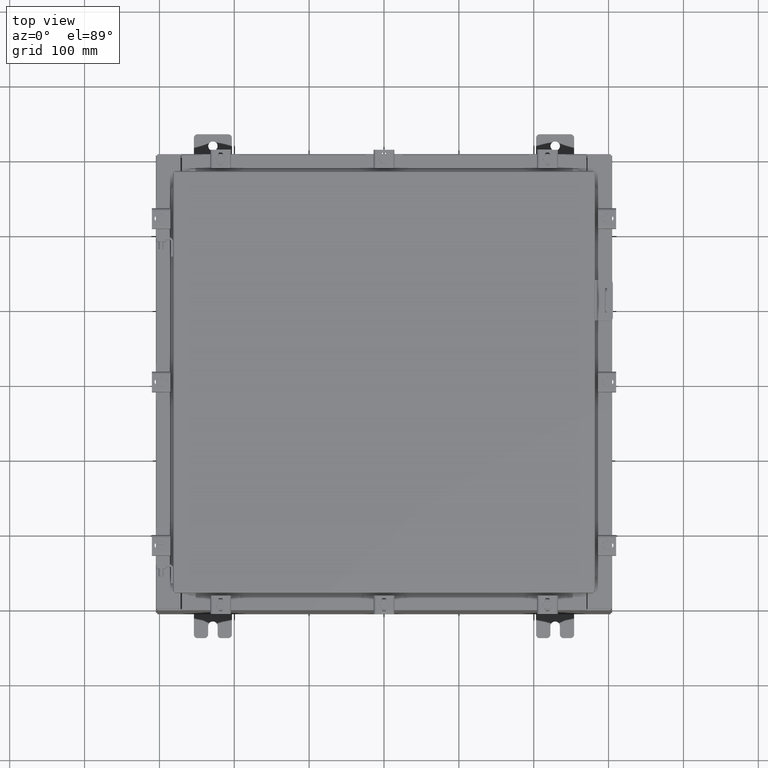
[diagram: clean part render]
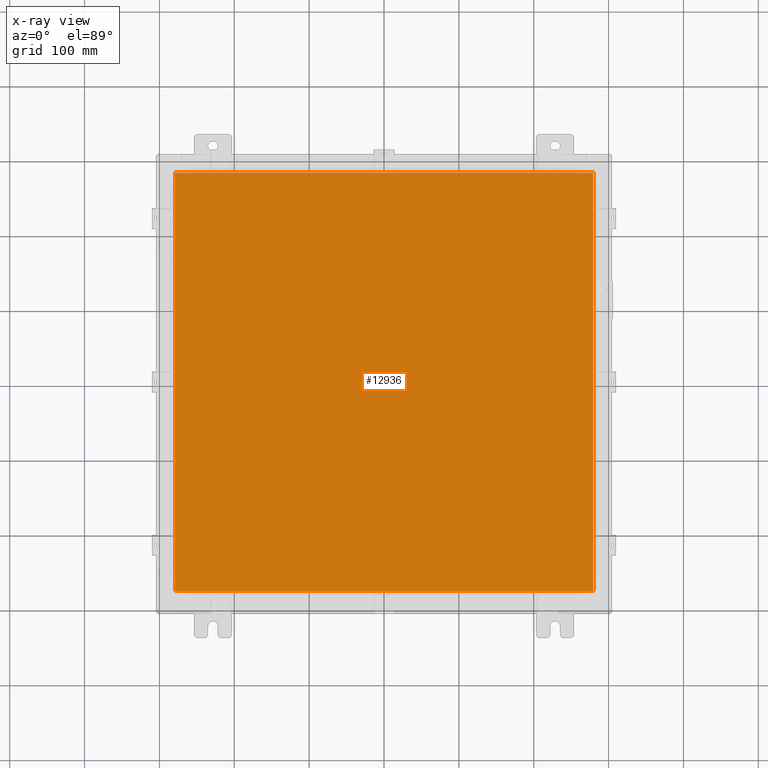
[diagram: x-ray — body ghosted, one internal face saturated and labeled with its STEP entity id]
A machine part, top view, then the same camera in x-ray: the body is ghosted and one INTERNAL B-rep face — a face not visible from any outside direction — is saturated and labeled: STEP entity #12936.
In plain terms, the highlighted planar face has unit normal (0, 0, -1).
Its self-contained STEP definition (entity closure, byte-faithful):
#1733 = CARTESIAN_POINT ( 'NONE',  ( -11.00630000000000000, 11.00630000000000000, -0.07470000000000015500 ) ) ;
#2356 = VERTEX_POINT ( 'NONE', #16410 ) ;
#2686 = CARTESIAN_POINT ( 'NONE',  ( 11.00630000000000000, -11.00630000000000000, -0.07470000000000015500 ) ) ;
#3176 = ORIENTED_EDGE ( 'NONE', *, *, #7193, .F. ) ;
#3702 = ORIENTED_EDGE ( 'NONE', *, *, #18267, .F. ) ;
#4168 = CARTESIAN_POINT ( 'NONE',  ( 0.0000000000000000000, 0.0000000000000000000, -0.07470000000000015500 ) ) ;
#5047 = VERTEX_POINT ( 'NONE', #10040 ) ;
#5411 = EDGE_CURVE ( 'NONE', #17978, #5047, #9642, .T. ) ;
#6357 = AXIS2_PLACEMENT_3D ( 'NONE', #4168, #9400, #21607 ) ;
#6879 = VECTOR ( 'NONE', #7847, 39.37007874015748100 ) ;
#7022 = LINE ( 'NONE', #1733, #11085 ) ;
#7193 = EDGE_CURVE ( 'NONE', #10075, #17978, #7949, .T. ) ;
#7222 = CARTESIAN_POINT ( 'NONE',  ( 11.00630000000000000, -11.00630000000000000, -0.07470000000000015500 ) ) ;
#7423 = FACE_OUTER_BOUND ( 'NONE', #10286, .T. ) ;
#7847 = DIRECTION ( 'NONE',  ( 0.0000000000000000000, 1.000000000000000000, 0.0000000000000000000 ) ) ;
#7949 = LINE ( 'NONE', #2686, #6879 ) ;
#9179 = LINE ( 'NONE', #12240, #22551 ) ;
#9400 = DIRECTION ( 'NONE',  ( 0.0000000000000000000, 0.0000000000000000000, -1.000000000000000000 ) ) ;
#9642 = LINE ( 'NONE', #18281, #17401 ) ;
#10040 = CARTESIAN_POINT ( 'NONE',  ( -11.00630000000000000, 11.00630000000000000, -0.07470000000000015500 ) ) ;
#10075 = VERTEX_POINT ( 'NONE', #7222 ) ;
#10286 = EDGE_LOOP ( 'NONE', ( #3176, #19743, #3702, #18861 ) ) ;
#10396 = DIRECTION ( 'NONE',  ( 1.000000000000000000, -0.0000000000000000000, -0.0000000000000000000 ) ) ;
#10632 = CARTESIAN_POINT ( 'NONE',  ( 11.00630000000000000, 11.00630000000000000, -0.07470000000000015500 ) ) ;
#11085 = VECTOR ( 'NONE', #12182, 39.37007874015748100 ) ;
#12182 = DIRECTION ( 'NONE',  ( 0.0000000000000000000, -1.000000000000000000, 0.0000000000000000000 ) ) ;
#12240 = CARTESIAN_POINT ( 'NONE',  ( -11.00630000000000000, -11.00630000000000000, -0.07470000000000015500 ) ) ;
#12829 = PLANE ( 'NONE',  #6357 ) ;
#12936 = ADVANCED_FACE ( 'NONE', ( #7423 ), #12829, .T. ) ;
#16410 = CARTESIAN_POINT ( 'NONE',  ( -11.00630000000000000, -11.00630000000000000, -0.07470000000000015500 ) ) ;
#17401 = VECTOR ( 'NONE', #21802, 39.37007874015748100 ) ;
#17978 = VERTEX_POINT ( 'NONE', #10632 ) ;
#18267 = EDGE_CURVE ( 'NONE', #5047, #2356, #7022, .T. ) ;
#18281 = CARTESIAN_POINT ( 'NONE',  ( 11.00630000000000000, 11.00630000000000000, -0.07470000000000015500 ) ) ;
#18861 = ORIENTED_EDGE ( 'NONE', *, *, #5411, .F. ) ;
#19743 = ORIENTED_EDGE ( 'NONE', *, *, #22302, .F. ) ;
#21607 = DIRECTION ( 'NONE',  ( -1.000000000000000000, 0.0000000000000000000, -0.0000000000000000000 ) ) ;
#21802 = DIRECTION ( 'NONE',  ( -1.000000000000000000, -0.0000000000000000000, -0.0000000000000000000 ) ) ;
#22302 = EDGE_CURVE ( 'NONE', #2356, #10075, #9179, .T. ) ;
#22551 = VECTOR ( 'NONE', #10396, 39.37007874015748100 ) ;